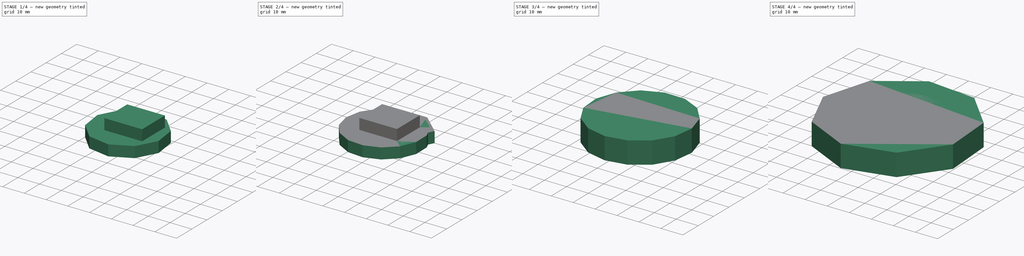
[diagram: build sequence overview — one tinted view per stage of 4, left to right]
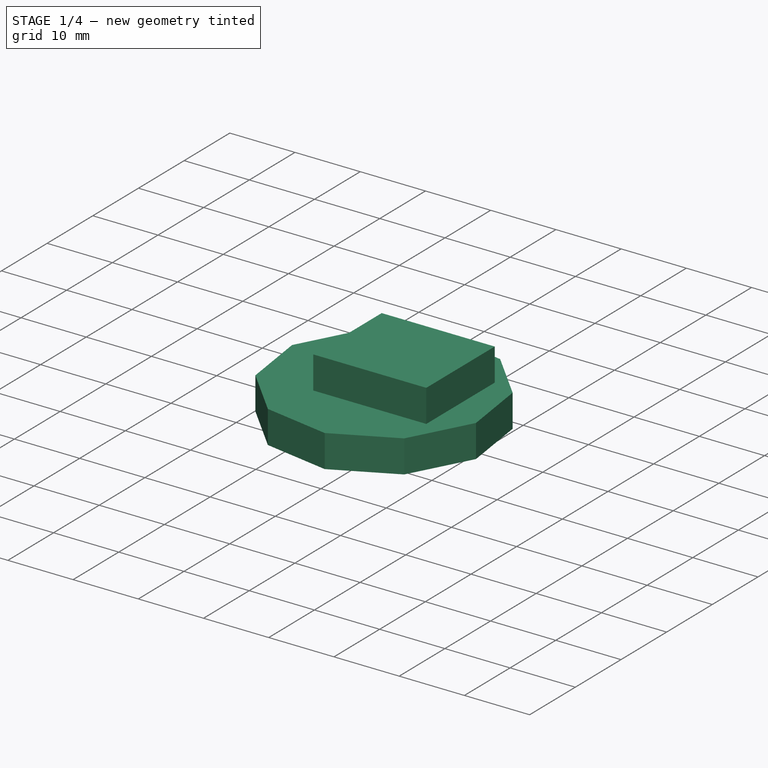
[diagram: stage 1 of 4 — iso view after this stage's code; geometry added in this stage tinted green]
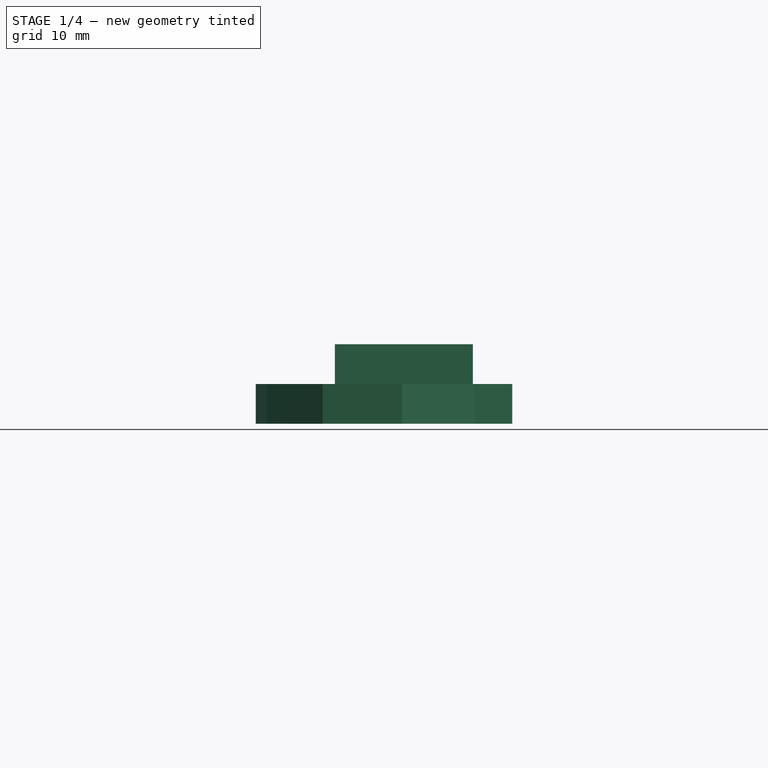
[diagram: stage 1 of 4 — front view after this stage's code; geometry added in this stage tinted green]
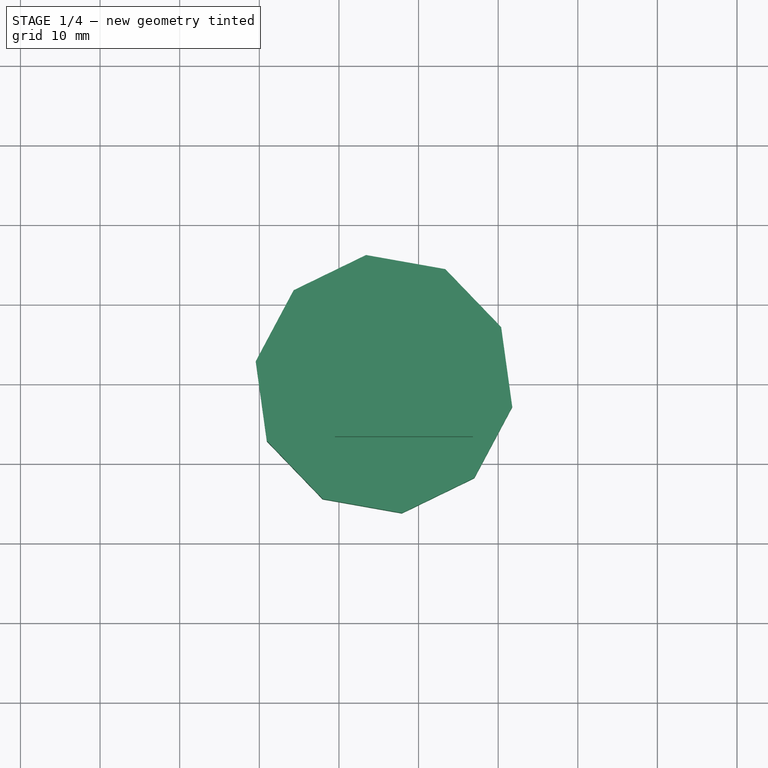
[diagram: stage 1 of 4 — top view after this stage's code; geometry added in this stage tinted green]
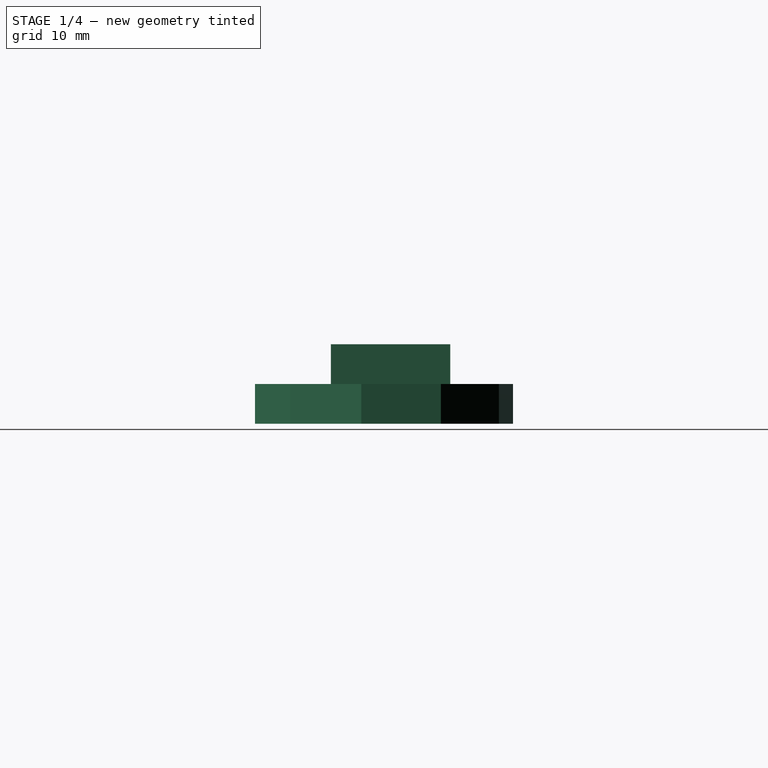
[diagram: stage 1 of 4 — right view after this stage's code; geometry added in this stage tinted green]
FCSTD DOCUMENT  (FreeCAD 0.19R)
Label: Polygons
License: All rights reserved
LicenseURL: http://en.wikipedia.org/wiki/All_rights_reserved
objects: Sketcher::SketchObject×9, PartDesign::Pad×9, PartDesign::Body×8
note: 35 computed .brp shape members not serialized (recipe doc carries the construction recipe); baked Part::Feature solids carry a one-line shape summary decoded from their .brp

FEATURE [PartDesign::Body] Body005
  Group = -> [Sketch005,Pad005]
  Origin = -> Origin005
  Placement = pos=(17.6002,10.8507,0) rot=(0,0,1;0rad)
  Tip = -> Pad005
FEATURE [Sketcher::SketchObject] Sketch006
  FullyConstrained = false
  MapMode = 5
  Support = -> [XY_Plane006]
  sketch-geometry (4):
    g0: LineSegment StartX=-10.5155 StartY=8.31443 StartZ=0 EndX=6.81498 EndY=8.31443 EndZ=0
    g1: LineSegment StartX=6.81498 StartY=8.31443 StartZ=0 EndX=6.81498 EndY=-6.67411 EndZ=0
    g2: LineSegment StartX=6.81498 StartY=-6.67411 StartZ=0 EndX=-10.5155 EndY=-6.67411 EndZ=0
    g3: LineSegment StartX=-10.5155 StartY=-6.67411 StartZ=0 EndX=-10.5155 EndY=8.31443 EndZ=0
  constraints (8):
    c: Coincident(g0,g1)
    c: Coincident(g1,g2)
    c: Coincident(g2,g3)
    c: Coincident(g3,g0)
    c: Horizontal(g0)
    c: Horizontal(g2)
    c: Vertical(g1)
    c: Vertical(g3)
FEATURE [PartDesign::Pad] Pad006
  Direction = (1,1,1)
  Length = 10
  Length2 = 100
  Profile = -> Sketch006
  Type = 0
FEATURE [PartDesign::Body] Body006
  Group = -> [Sketch006,Pad006,Sketch007,Pad007]
  Origin = -> Origin006
  Placement = pos=(13.2288,17.2452,0) rot=(0,0,-1;3.14159rad)
  Tip = -> Pad007
FEATURE [Sketcher::SketchObject] Sketch008
  FullyConstrained = false
  MapMode = 5
  Support = -> [XY_Plane007]
  sketch-geometry (11):
    g0: LineSegment StartX=7.00769 StartY=-11.7841 StartZ=0 EndX=11.7671 EndY=-2.86367 EndZ=0
    g1: LineSegment StartX=11.7671 StartY=-2.86367 StartZ=0 EndX=10.3741 EndY=7.1506 EndZ=0
    g2: LineSegment StartX=10.3741 StartY=7.1506 StartZ=0 EndX=3.36102 EndY=14.4336 EndZ=0
    g3: LineSegment StartX=3.36102 StartY=14.4336 StartZ=0 EndX=-6.59355 EndY=16.2034 EndZ=0
    g4: LineSegment StartX=-6.59355 StartY=16.2034 StartZ=0 EndX=-15.6873 EndY=11.7841 EndZ=0
    g5: LineSegment StartX=-15.6873 StartY=11.7841 StartZ=0 EndX=-20.4466 EndY=2.86367 EndZ=0
    g6: LineSegment StartX=-20.4466 StartY=2.86367 StartZ=0 EndX=-19.0537 EndY=-7.1506 EndZ=0
    g7: LineSegment StartX=-19.0537 StartY=-7.1506 StartZ=0 EndX=-12.0406 EndY=-14.4336 EndZ=0
    g8: LineSegment StartX=-12.0406 StartY=-14.4336 StartZ=0 EndX=-2.08601 EndY=-16.2034 EndZ=0
    g9: LineSegment StartX=-2.08601 StartY=-16.2034 StartZ=0 EndX=7.00769 EndY=-11.7841 EndZ=0
    g10: Circle CenterX=-4.33978 CenterY=0 CenterZ=0 NormalX=0 NormalY=0 NormalZ=1 AngleXU=0 Radius=16.3594
  constraints (22):
    c: Coincident(g0,g1)
    c: Coincident(g1,g2)
    c: Coincident(g2,g3)
    c: Coincident(g3,g4)
    c: Coincident(g4,g5)
    c: Coincident(g5,g6)
    c: Coincident(g6,g7)
    c: Coincident(g7,g8)
    c: Coincident(g8,g9)
    c: Coincident(g9,g0)
    c: Equal(g0, g1-g9) x9
    c: PointOnObject(g0,g10)
    c: PointOnObject(g1,g10)
    c: PointOnObject(g2,g10)
    c: PointOnObject(g3,g10)
    c: PointOnObject(g4,g10)
    c: PointOnObject(g5,g10)
    c: PointOnObject(g6,g10)
    c: PointOnObject(g7,g10)
    c: PointOnObject(g8,g10)
    c: PointOnObject(g9,g10)
    c: PointOnObject(g10,g-1)
FEATURE [PartDesign::Pad] Pad008
  Direction = (1,1,1)
  Length = 5
  Length2 = 100
  Profile = -> Sketch008
  Type = 0
FEATURE [PartDesign::Body] Body007
  Group = -> [Sketch008,Pad008]
  Origin = -> Origin007
  Placement = pos=(20.4466,16.2034,0) rot=(0,0,1;0rad)
  Tip = -> Pad008
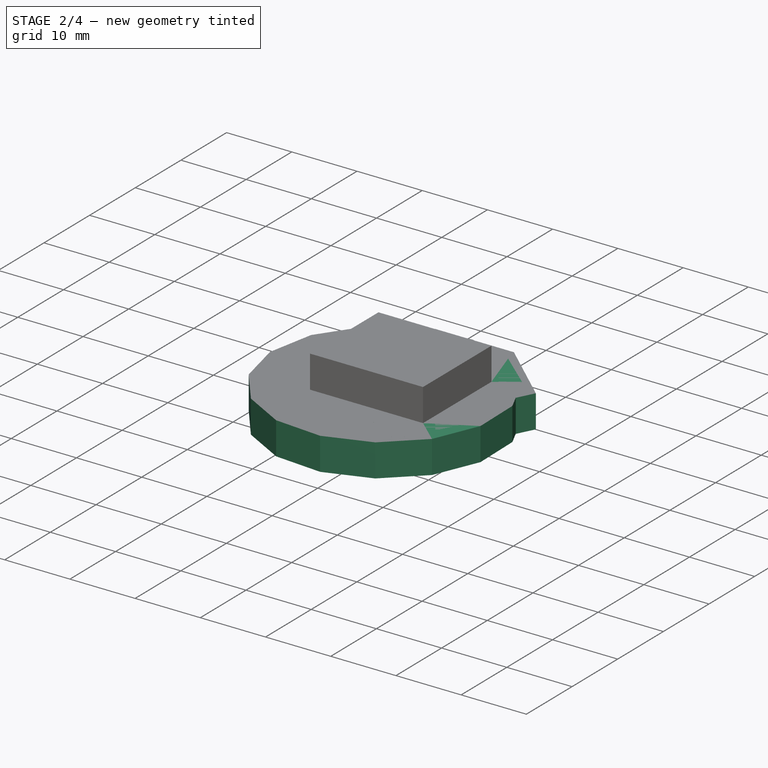
[diagram: stage 2 of 4 — iso view after this stage's code; geometry added in this stage tinted green]
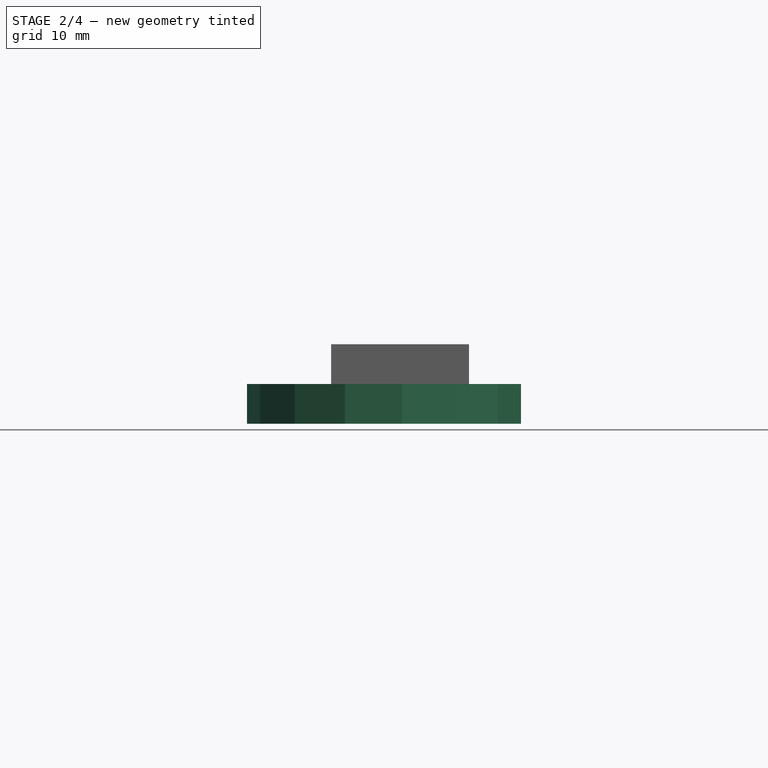
[diagram: stage 2 of 4 — front view after this stage's code; geometry added in this stage tinted green]
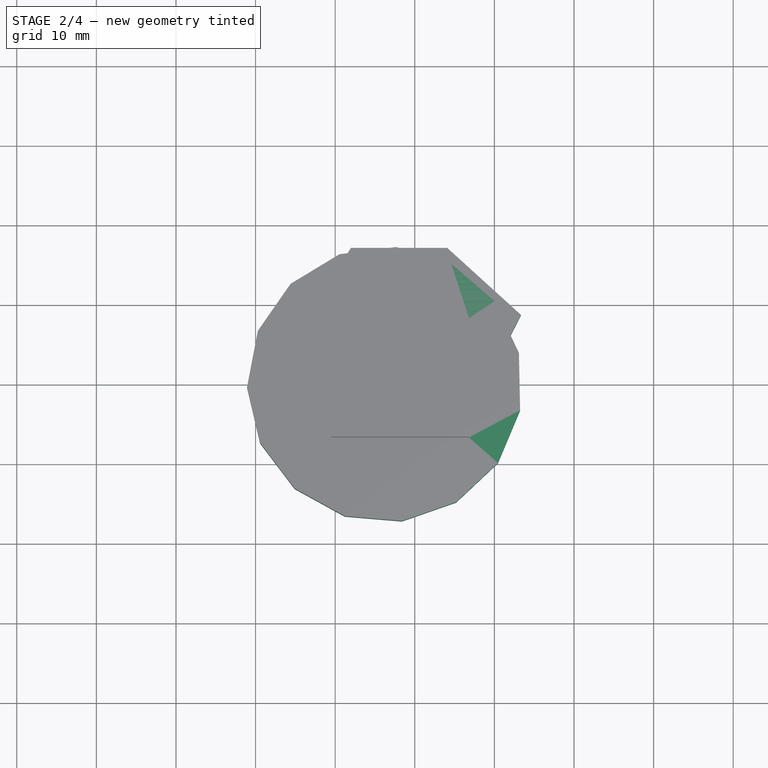
[diagram: stage 2 of 4 — top view after this stage's code; geometry added in this stage tinted green]
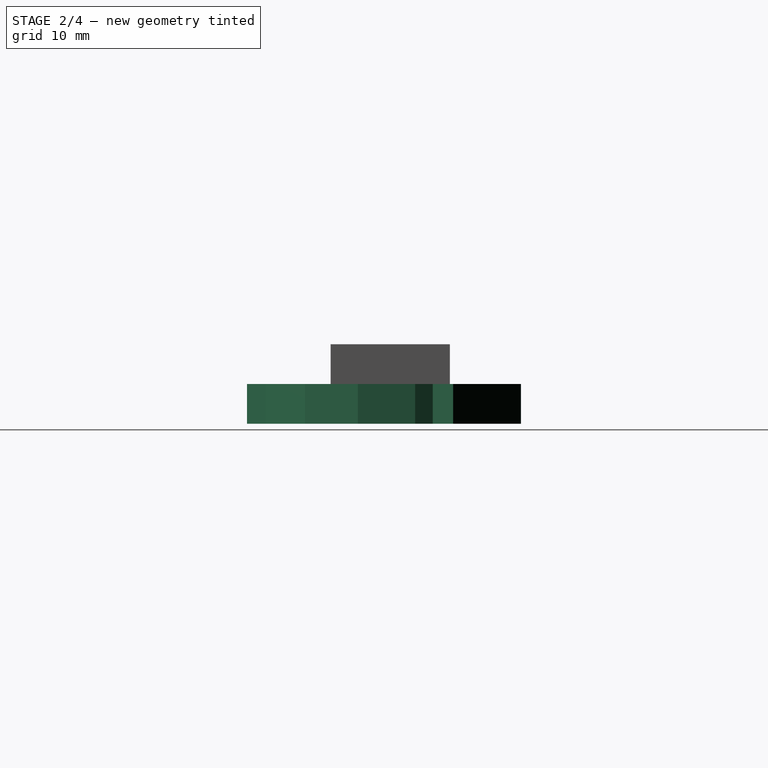
[diagram: stage 2 of 4 — right view after this stage's code; geometry added in this stage tinted green]
FEATURE [PartDesign::Body] Body004
  Group = -> [Sketch004,Pad004]
  Origin = -> Origin004
  Placement = pos=(8.88503,5.12978,0) rot=(0,0,1;0rad)
  Tip = -> Pad004
FEATURE [Sketcher::SketchObject] Sketch005
  FullyConstrained = false
  MapMode = 5
  Support = -> [XY_Plane005]
  sketch-geometry (7):
    g0: LineSegment StartX=8.91799 StartY=0 StartZ=0 EndX=13.3377 EndY=8.72222 EndZ=0
    g1: LineSegment StartX=13.3377 StartY=8.72222 StartZ=0 EndX=4.07736 EndY=17.1407 EndZ=0
    g2: LineSegment StartX=4.07736 StartY=17.1407 StartZ=0 EndX=-8.0242 EndY=17.1407 EndZ=0
    g3: LineSegment StartX=-8.0242 StartY=17.1407 StartZ=0 EndX=-17.6002 EndY=1.77698 EndZ=0
    g4: LineSegment StartX=-17.6002 StartY=1.77698 StartZ=0 EndX=-4.76204 EndY=-10.8507 EndZ=0
    g5: LineSegment StartX=-4.76204 StartY=-10.8507 StartZ=0 EndX=0.920433 EndY=-10.8507 EndZ=0
    g6: LineSegment StartX=0.920433 StartY=-10.8507 StartZ=0 EndX=8.91799 EndY=0 EndZ=0
  constraints (10):
    c: PointOnObject(g0,g-1)
    c: Coincident(g0,g1)
    c: Coincident(g1,g2)
    c: Horizontal(g2)
    c: Coincident(g2,g3)
    c: Coincident(g3,g4)
    c: Coincident(g4,g5)
    c: Horizontal(g5)
    c: Coincident(g5,g6)
    c: Coincident(g6,g0)
FEATURE [PartDesign::Pad] Pad005
  Direction = (1,1,1)
  Length = 5
  Length2 = 100
  Profile = -> Sketch005
  Type = 0
FEATURE [Sketcher::SketchObject] Sketch007
  FullyConstrained = false
  MapMode = 5
  Support = -> [XY_Plane006]
  sketch-geometry (16):
    g0: LineSegment StartX=10.0196 StartY=10.4579 StartZ=0 EndX=4.57389 EndY=15.1624 EndZ=0
    g1: LineSegment StartX=4.57389 StartY=15.1624 StartZ=0 EndX=-2.31456 EndY=17.2452 EndZ=0
    g2: LineSegment StartX=-2.31456 StartY=17.2452 StartZ=0 EndX=-9.45463 EndY=16.3462 EndZ=0
    g3: LineSegment StartX=-9.45463 StartY=16.3462 StartZ=0 EndX=-15.6117 EndY=12.6207 EndZ=0
    g4: LineSegment StartX=-15.6117 StartY=12.6207 StartZ=0 EndX=-19.7213 EndY=6.71307 EndZ=0
    g5: LineSegment StartX=-19.7213 StartY=6.71307 StartZ=0 EndX=-21.0726 EndY=-0.355362 EndZ=0
    g6: LineSegment StartX=-21.0726 StartY=-0.355362 StartZ=0 EndX=-19.4322 EndY=-7.36235 EndZ=0
    g7: LineSegment StartX=-19.4322 StartY=-7.36235 StartZ=0 EndX=-15.0836 EndY=-13.0963 EndZ=0
    g8: LineSegment StartX=-15.0836 StartY=-13.0963 StartZ=0 EndX=-8.7787 EndY=-16.5658 EndZ=0
    g9: LineSegment StartX=-8.7787 StartY=-16.5658 StartZ=0 EndX=-1.60773 EndY=-17.1709 EndZ=0
    g10: LineSegment StartX=-1.60773 StartY=-17.1709 StartZ=0 EndX=5.1894 EndY=-14.807 EndZ=0
    g11: LineSegment StartX=5.1894 StartY=-14.807 StartZ=0 EndX=10.4374 EndY=-9.88287 EndZ=0
    g12: LineSegment StartX=10.4374 StartY=-9.88287 StartZ=0 EndX=13.2288 EndY=-3.24987 EndZ=0
    g13: LineSegment StartX=13.2288 StartY=-3.24987 StartZ=0 EndX=13.0811 EndY=3.94506 EndZ=0
    g14: LineSegment StartX=13.0811 StartY=3.94506 StartZ=0 EndX=10.0196 EndY=10.4579 EndZ=0
    g15: Circle CenterX=-3.76979 CenterY=0 CenterZ=0 NormalX=0 NormalY=0 NormalZ=1 AngleXU=0 Radius=17.3065
  constraints (32):
    c: Coincident(g0,g1)
    c: Coincident(g1,g2)
    c: Coincident(g2,g3)
    c: Coincident(g3,g4)
    c: Coincident(g4,g5)
    c: Coincident(g5,g6)
    c: Coincident(g6,g7)
    c: Coincident(g7,g8)
    c: Coincident(g8,g9)
    c: Coincident(g9,g10)
    c: Coincident(g10,g11)
    c: Coincident(g11,g12)
    c: Coincident(g12,g13)
    c: Coincident(g13,g14)
    c: Coincident(g14,g0)
    c: Equal(g0, g1-g14) x14
    c: PointOnObject(g0,g15)
    c: PointOnObject(g1,g15)
    c: PointOnObject(g2,g15)
    c: PointOnObject(g3,g15)
    c: PointOnObject(g4,g15)
    c: PointOnObject(g5,g15)
    c: PointOnObject(g6,g15)
    c: PointOnObject(g7,g15)
    c: PointOnObject(g8,g15)
    c: PointOnObject(g9,g15)
    c: PointOnObject(g10,g15)
    c: PointOnObject(g11,g15)
    c: PointOnObject(g12,g15)
    c: PointOnObject(g13,g15)
    c: PointOnObject(g14,g15)
    c: PointOnObject(g15,g-1)
FEATURE [PartDesign::Pad] Pad007
  BaseFeature = -> Pad006
  Direction = (1,1,1)
  Length = 5
  Length2 = 100
  Profile = -> Sketch007
  Type = 0
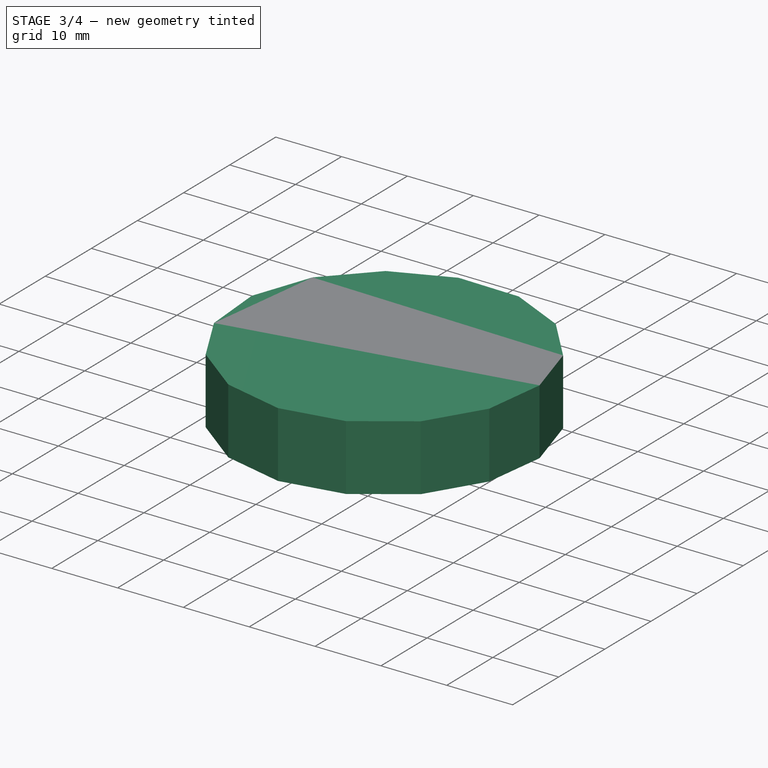
[diagram: stage 3 of 4 — iso view after this stage's code; geometry added in this stage tinted green]
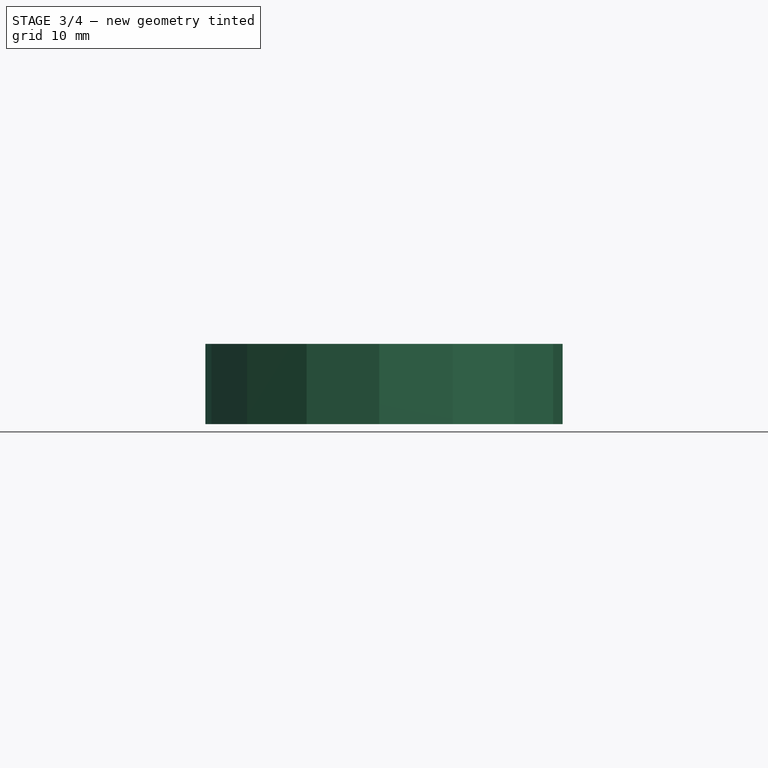
[diagram: stage 3 of 4 — front view after this stage's code; geometry added in this stage tinted green]
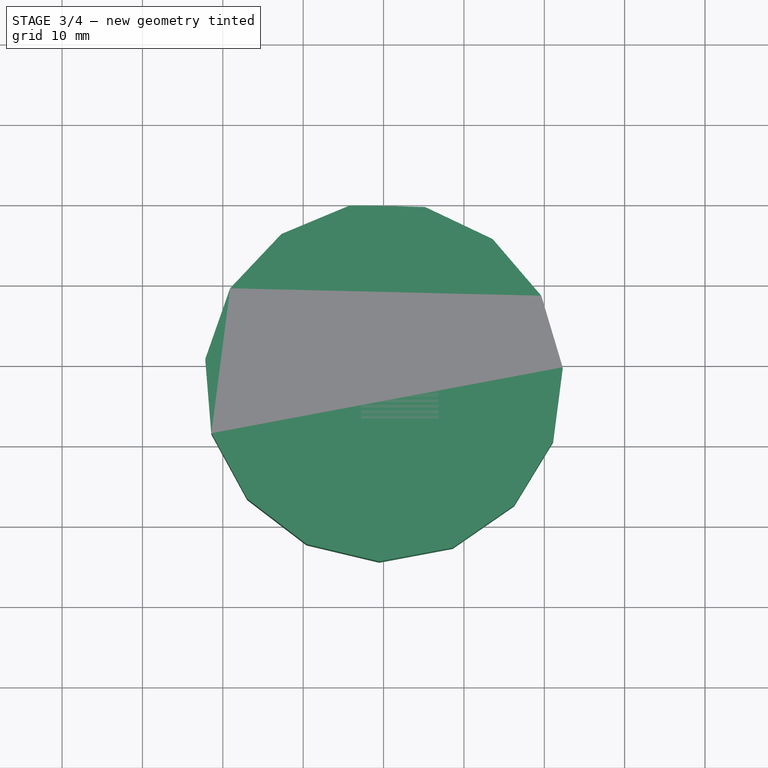
[diagram: stage 3 of 4 — top view after this stage's code; geometry added in this stage tinted green]
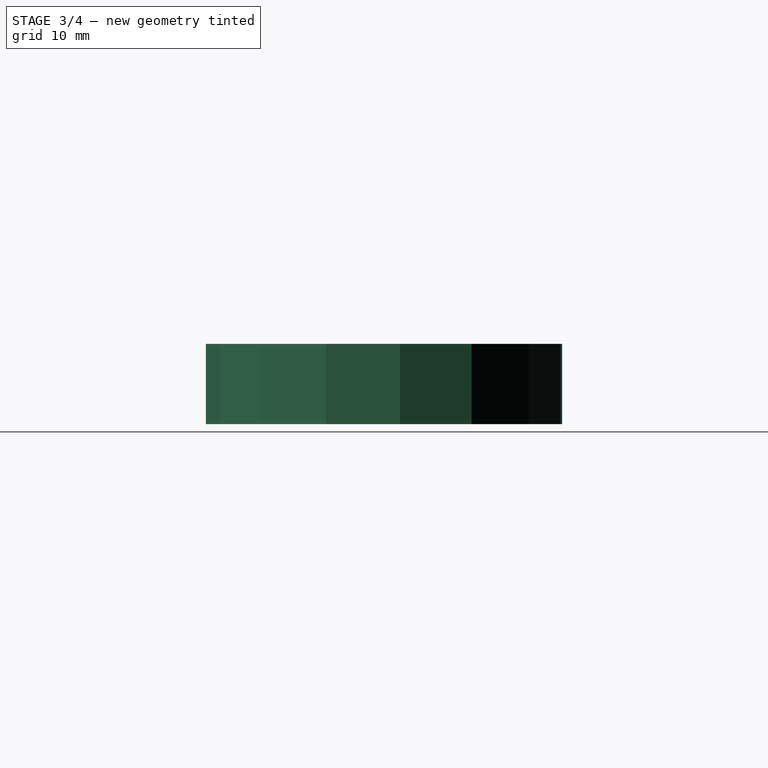
[diagram: stage 3 of 4 — right view after this stage's code; geometry added in this stage tinted green]
FEATURE [PartDesign::Body] Body001
  Group = -> [Sketch001,Pad001]
  Origin = -> Origin001
  Placement = pos=(14.4442,14.4442,0) rot=(0,0,1;0rad)
  Tip = -> Pad001
FEATURE [Sketcher::SketchObject] Sketch002
  FullyConstrained = false
  MapMode = 5
  Support = -> [XY_Plane002]
  sketch-geometry (16):
    g0: LineSegment StartX=5.16874 StartY=19.6609 StartZ=0 EndX=-4.12593 EndY=19.8825 EndZ=0
    g1: LineSegment StartX=-4.12593 StartY=19.8825 StartZ=0 EndX=-12.7072 EndY=16.3045 EndZ=0
    g2: LineSegment StartX=-12.7072 StartY=16.3045 StartZ=0 EndX=-19.0913 EndY=9.54558 EndZ=0
    g3: LineSegment StartX=-19.0913 StartY=9.54558 StartZ=0 EndX=-22.1743 EndY=0.774318 EndZ=0
    g4: LineSegment StartX=-22.1743 StartY=0.774318 StartZ=0 EndX=-21.4232 EndY=-8.4926 EndZ=0
    g5: LineSegment StartX=-21.4232 StartY=-8.4926 StartZ=0 EndX=-16.9678 EndY=-16.6528 EndZ=0
    g6: LineSegment StartX=-16.9678 StartY=-16.6528 StartZ=0 EndX=-9.57852 EndY=-22.2954 EndZ=0
    g7: LineSegment StartX=-9.57852 StartY=-22.2954 StartZ=0 EndX=-0.533051 EndY=-24.4447 EndZ=0
    g8: LineSegment StartX=-0.533051 StartY=-24.4447 StartZ=0 EndX=8.60459 EndY=-22.7291 EndZ=0
    g9: LineSegment StartX=8.60459 StartY=-22.7291 StartZ=0 EndX=16.2544 EndY=-17.4451 EndZ=0
    g10: LineSegment StartX=16.2544 StartY=-17.4451 StartZ=0 EndX=21.0937 EndY=-9.50653 EndZ=0
    g11: LineSegment StartX=21.0937 StartY=-9.50653 StartZ=0 EndX=22.2857 EndY=-0.285945 EndZ=0
    g12: LineSegment StartX=22.2857 StartY=-0.285945 StartZ=0 EndX=19.6243 EndY=8.6223 EndZ=0
    g13: LineSegment StartX=19.6243 StartY=8.6223 StartZ=0 EndX=13.5697 EndY=15.6779 EndZ=0
    g14: LineSegment StartX=13.5697 StartY=15.6779 StartZ=0 EndX=5.16874 EndY=19.6609 EndZ=0
    g15: Circle CenterX=0 CenterY=-2.09228 CenterZ=0 NormalX=0 NormalY=0 NormalZ=1 AngleXU=0 Radius=22.3588
  constraints (32):
    c: Coincident(g0,g1)
    c: Coincident(g1,g2)
    c: Coincident(g2,g3)
    c: Coincident(g3,g4)
    c: Coincident(g4,g5)
    c: Coincident(g5,g6)
    c: Coincident(g6,g7)
    c: Coincident(g7,g8)
    c: Coincident(g8,g9)
    c: Coincident(g9,g10)
    c: Coincident(g10,g11)
    c: Coincident(g11,g12)
    c: Coincident(g12,g13)
    c: Coincident(g13,g14)
    c: Coincident(g14,g0)
    c: Equal(g0, g1-g14) x14
    c: PointOnObject(g0,g15)
    c: PointOnObject(g1,g15)
    c: PointOnObject(g2,g15)
    c: PointOnObject(g3,g15)
    c: PointOnObject(g4,g15)
    c: PointOnObject(g5,g15)
    c: PointOnObject(g6,g15)
    c: PointOnObject(g7,g15)
    c: PointOnObject(g8,g15)
    c: PointOnObject(g9,g15)
    c: PointOnObject(g10,g15)
    c: PointOnObject(g11,g15)
    c: PointOnObject(g12,g15)
    c: PointOnObject(g13,g15)
    c: PointOnObject(g14,g15)
    c: PointOnObject(g15,g-2)
FEATURE [PartDesign::Pad] Pad002
  Direction = (1,1,1)
  Length = 10
  Length2 = 100
  Profile = -> Sketch002
  Type = 0
FEATURE [PartDesign::Body] Body002
  Group = -> [Sketch002,Pad002]
  Origin = -> Origin002
  Placement = pos=(22.1743,24.4447,0) rot=(0,0,1;0rad)
  Tip = -> Pad002
FEATURE [Sketcher::SketchObject] Sketch003
  FullyConstrained = false
  MapMode = 5
  Support = -> [XY_Plane003]
  sketch-geometry (4):
    g0: LineSegment StartX=7.39952 StartY=7.66461 StartZ=0 EndX=-10.3375 EndY=2.57587 EndZ=0
    g1: LineSegment StartX=-10.3375 StartY=2.57587 StartZ=0 EndX=2.93799 EndY=-10.2405 EndZ=0
    g2: LineSegment StartX=2.93799 StartY=-10.2405 StartZ=0 EndX=7.39952 EndY=7.66461 EndZ=0
    g3: Circle CenterX=0 CenterY=0 CenterZ=0 NormalX=0 NormalY=0 NormalZ=1 AngleXU=0 Radius=10.6536
  constraints (9):
    c: Coincident(g0,g1)
    c: Coincident(g1,g2)
    c: Coincident(g2,g0)
    c: Equal(g0,g1)
    c: Equal(g0,g2)
    c: PointOnObject(g0,g3)
    c: PointOnObject(g1,g3)
    c: PointOnObject(g2,g3)
    c: Coincident(g3,g-1)
FEATURE [PartDesign::Pad] Pad003
  Direction = (1,1,1)
  Length = 5
  Length2 = 100
  Profile = -> Sketch003
  Type = 0
FEATURE [PartDesign::Body] Body003
  Group = -> [Sketch003,Pad003]
  Origin = -> Origin003
  Placement = pos=(10.3375,10.2405,0) rot=(0,0,1;0rad)
  Tip = -> Pad003
FEATURE [Sketcher::SketchObject] Sketch004
  FullyConstrained = false
  MapMode = 5
  Support = -> [XY_Plane004]
  sketch-geometry (4):
    g0: LineSegment StartX=0 StartY=10.2596 StartZ=0 EndX=-8.88503 EndY=-5.12978 EndZ=0
    g1: LineSegment StartX=-8.88503 StartY=-5.12978 StartZ=0 EndX=8.88503 EndY=-5.12978 EndZ=0
    g2: LineSegment StartX=8.88503 StartY=-5.12978 StartZ=0 EndX=0 EndY=10.2596 EndZ=0
    g3: Circle CenterX=0 CenterY=0 CenterZ=0 NormalX=0 NormalY=0 NormalZ=1 AngleXU=0 Radius=10.2596
  constraints (10):
    c: Coincident(g0,g1)
    c: Coincident(g1,g2)
    c: Coincident(g2,g0)
    c: Equal(g0,g1)
    c: Equal(g0,g2)
    c: PointOnObject(g0,g3)
    c: PointOnObject(g1,g3)
    c: PointOnObject(g2,g3)
    c: Coincident(g3,g-1)
    c: PointOnObject(g2,g-2)
FEATURE [PartDesign::Pad] Pad004
  Direction = (1,1,1)
  Length = 5
  Length2 = 100
  Profile = -> Sketch004
  Type = 0
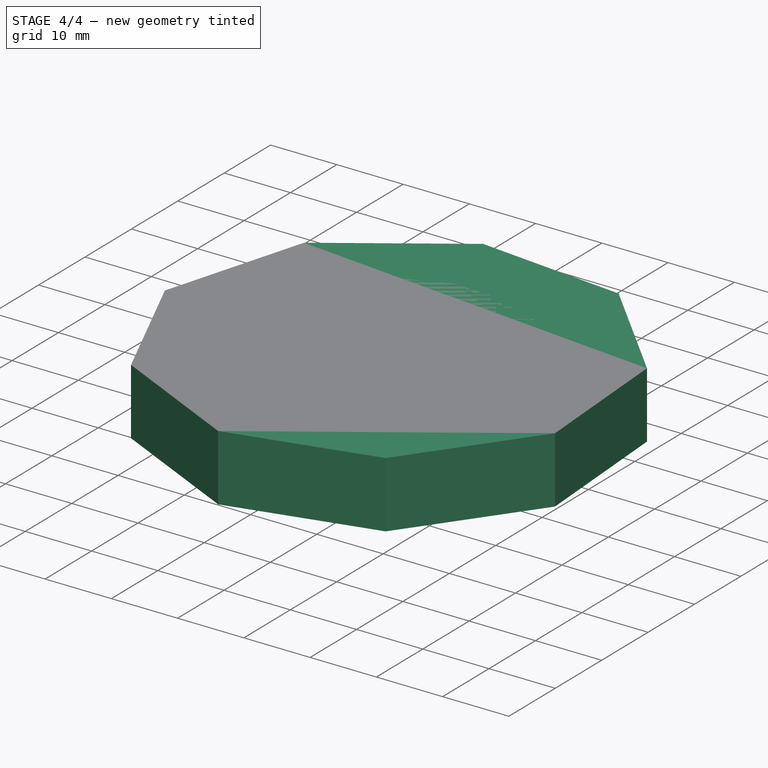
[diagram: stage 4 of 4 — iso view after this stage's code; geometry added in this stage tinted green]
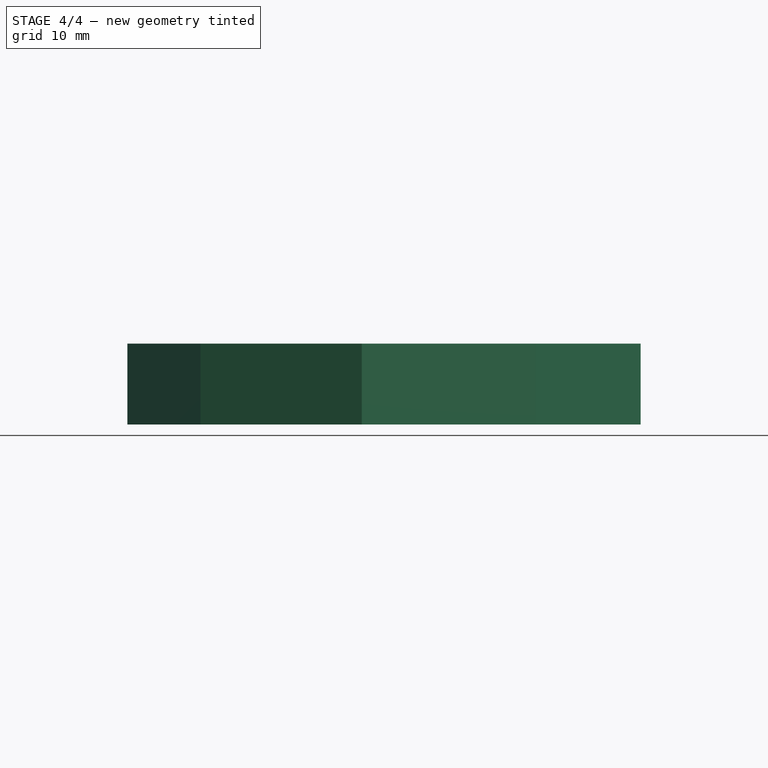
[diagram: stage 4 of 4 — front view after this stage's code; geometry added in this stage tinted green]
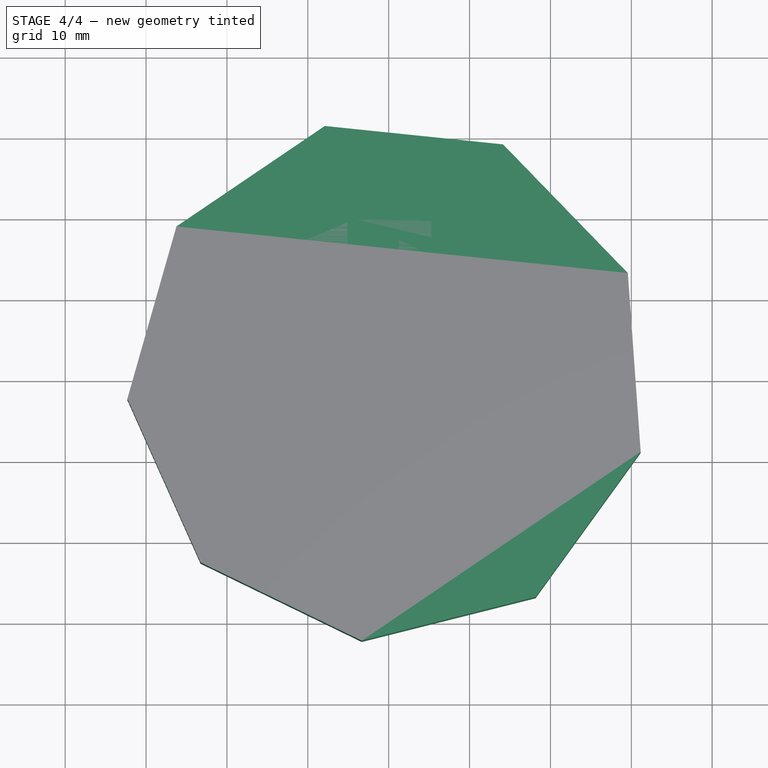
[diagram: stage 4 of 4 — top view after this stage's code; geometry added in this stage tinted green]
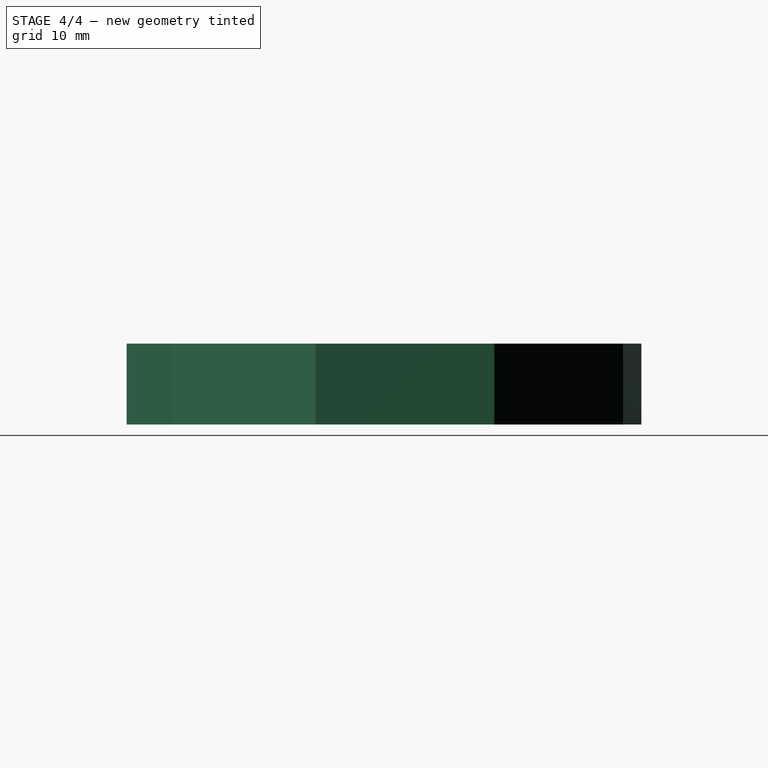
[diagram: stage 4 of 4 — right view after this stage's code; geometry added in this stage tinted green]
FEATURE [Sketcher::SketchObject] Sketch
  FullyConstrained = false
  MapMode = 5
  Support = -> [XY_Plane]
  sketch-geometry (10):
    g0: LineSegment StartX=18.1672 StartY=-26.824 StartZ=0 EndX=31.1591 EndY=-8.87074 EndZ=0
    g1: LineSegment StartX=31.1591 StartY=-8.87074 StartZ=0 EndX=29.5712 EndY=13.2333 EndZ=0
    g2: LineSegment StartX=29.5712 StartY=13.2333 StartZ=0 EndX=14.1467 EndY=29.1453 EndZ=0
    g3: LineSegment StartX=14.1467 StartY=29.1453 StartZ=0 EndX=-7.89726 EndY=31.4199 EndZ=0
    g4: LineSegment StartX=-7.89726 StartY=31.4199 StartZ=0 EndX=-26.246 EndY=18.9928 EndZ=0
    g5: LineSegment StartX=-26.246 StartY=18.9928 StartZ=0 EndX=-32.3139 EndY=-2.32127 EndZ=0
    g6: LineSegment StartX=-32.3139 StartY=-2.32127 StartZ=0 EndX=-23.2618 EndY=-22.5492 EndZ=0
    g7: LineSegment StartX=-23.2618 StartY=-22.5492 StartZ=0 EndX=-3.32525 EndY=-32.2261 EndZ=0
    g8: LineSegment StartX=-3.32525 StartY=-32.2261 StartZ=0 EndX=18.1672 EndY=-26.824 EndZ=0
    g9: Circle CenterX=0 CenterY=0 CenterZ=0 NormalX=0 NormalY=0 NormalZ=1 AngleXU=0 Radius=32.3972
  constraints (20):
    c: Coincident(g0,g1)
    c: Coincident(g1,g2)
    c: Coincident(g2,g3)
    c: Coincident(g3,g4)
    c: Coincident(g4,g5)
    c: Coincident(g5,g6)
    c: Coincident(g6,g7)
    c: Coincident(g7,g8)
    c: Coincident(g8,g0)
    c: Equal(g0, g1-g8) x8
    c: PointOnObject(g0,g9)
    c: PointOnObject(g1,g9)
    c: PointOnObject(g2,g9)
    c: PointOnObject(g3,g9)
    c: PointOnObject(g4,g9)
    c: PointOnObject(g5,g9)
    c: PointOnObject(g6,g9)
    c: PointOnObject(g7,g9)
    c: PointOnObject(g8,g9)
    c: Coincident(g9,g-1)
FEATURE [PartDesign::Pad] Pad
  Direction = (1,1,1)
  Length = 10
  Length2 = 100
  Profile = -> Sketch
  Type = 0
FEATURE [PartDesign::Body] Body
  Group = -> [Sketch,Pad]
  Origin = -> Origin
  Placement = pos=(32.3139,32.2261,0) rot=(0,0,1;0rad)
  Tip = -> Pad
FEATURE [Sketcher::SketchObject] Sketch001
  FullyConstrained = false
  MapMode = 5
  Support = -> [XY_Plane001]
  sketch-geometry (13):
    g0: LineSegment StartX=-14.1465 StartY=4.38587 StartZ=0 EndX=-14.4442 EndY=-3.27498 EndZ=0
    g1: LineSegment StartX=-14.4442 StartY=-3.27498 StartZ=0 EndX=-10.8715 EndY=-10.0583 EndZ=0
    g2: LineSegment StartX=-10.8715 StartY=-10.0583 StartZ=0 EndX=-4.38587 EndY=-14.1465 EndZ=0
    g3: LineSegment StartX=-4.38587 StartY=-14.1465 StartZ=0 EndX=3.27498 EndY=-14.4442 EndZ=0
    g4: LineSegment StartX=3.27498 StartY=-14.4442 StartZ=0 EndX=10.0583 EndY=-10.8715 EndZ=0
    g5: LineSegment StartX=10.0583 StartY=-10.8715 StartZ=0 EndX=14.1465 EndY=-4.38587 EndZ=0
    g6: LineSegment StartX=14.1465 StartY=-4.38587 StartZ=0 EndX=14.4442 EndY=3.27498 EndZ=0
    g7: LineSegment StartX=14.4442 StartY=3.27498 StartZ=0 EndX=10.8715 EndY=10.0583 EndZ=0
    g8: LineSegment StartX=10.8715 StartY=10.0583 StartZ=0 EndX=4.38587 EndY=14.1465 EndZ=0
    g9: LineSegment StartX=4.38587 StartY=14.1465 StartZ=0 EndX=-3.27498 EndY=14.4442 EndZ=0
    g10: LineSegment StartX=-3.27498 StartY=14.4442 StartZ=0 EndX=-10.0583 EndY=10.8715 EndZ=0
    g11: LineSegment StartX=-10.0583 StartY=10.8715 StartZ=0 EndX=-14.1465 EndY=4.38587 EndZ=0
    g12: Circle CenterX=0 CenterY=0 CenterZ=0 NormalX=0 NormalY=0 NormalZ=1 AngleXU=0 Radius=14.8108
  constraints (26):
    c: Coincident(g0,g1)
    c: Coincident(g1,g2)
    c: Coincident(g2,g3)
    c: Coincident(g3,g4)
    c: Coincident(g4,g5)
    c: Coincident(g5,g6)
    c: Coincident(g6,g7)
    c: Coincident(g7,g8)
    c: Coincident(g8,g9)
    c: Coincident(g9,g10)
    c: Coincident(g10,g11)
    c: Coincident(g11,g0)
    c: Equal(g0, g1-g11) x11
    c: PointOnObject(g0,g12)
    c: PointOnObject(g1,g12)
    c: PointOnObject(g2,g12)
    c: PointOnObject(g3,g12)
    c: PointOnObject(g4,g12)
    c: PointOnObject(g5,g12)
    c: PointOnObject(g6,g12)
    c: PointOnObject(g7,g12)
    c: PointOnObject(g8,g12)
    c: PointOnObject(g9,g12)
    c: PointOnObject(g10,g12)
    c: PointOnObject(g11,g12)
    c: Coincident(g12,g-1)
FEATURE [PartDesign::Pad] Pad001
  Direction = (1,1,1)
  Length = 10
  Length2 = 100
  Profile = -> Sketch001
  Type = 0
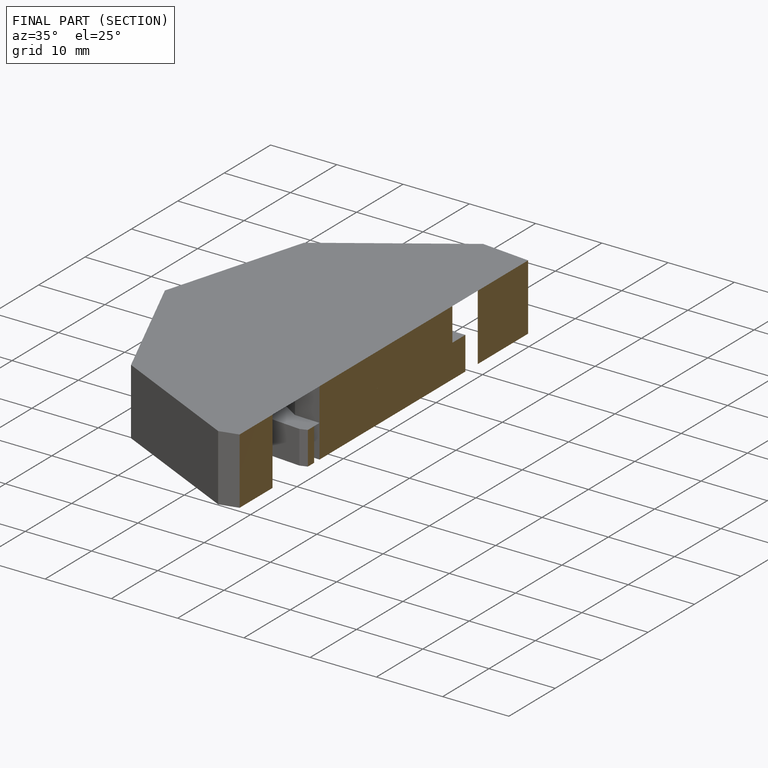
[diagram: finished part — half-section view (interior)]
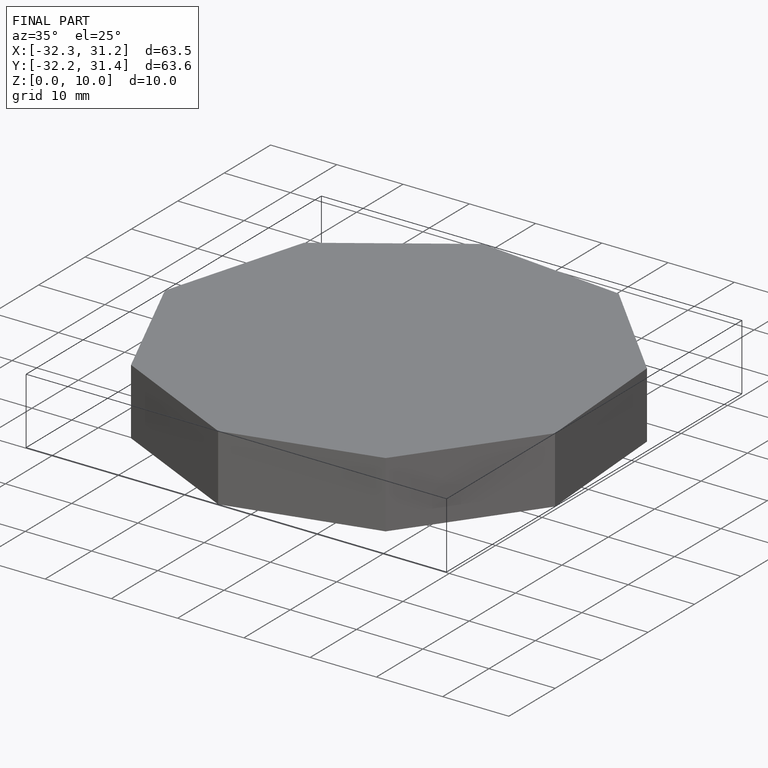
[diagram: finished part — iso view with bounding-box wireframe]
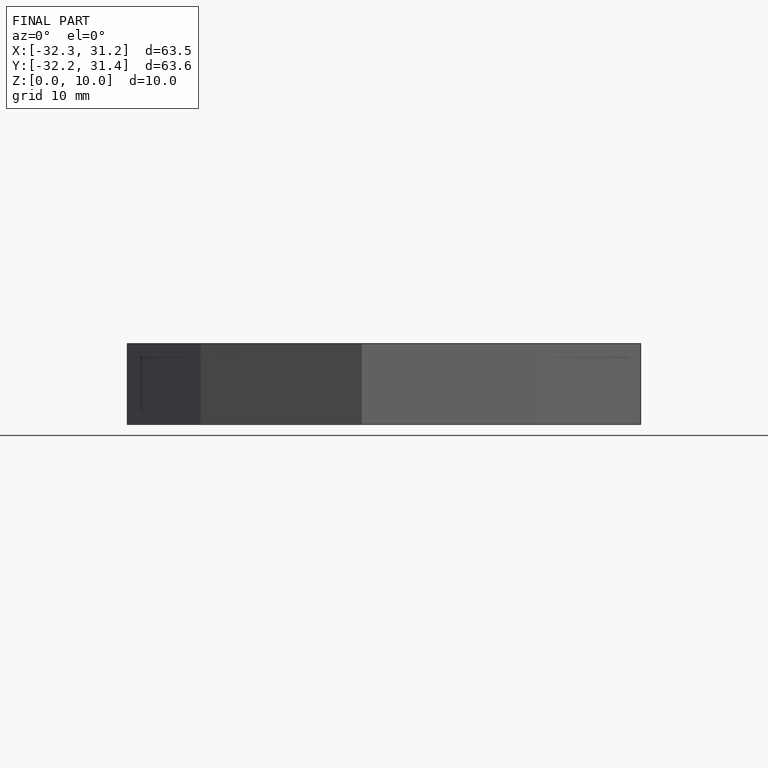
[diagram: finished part — front view with bounding-box wireframe]
